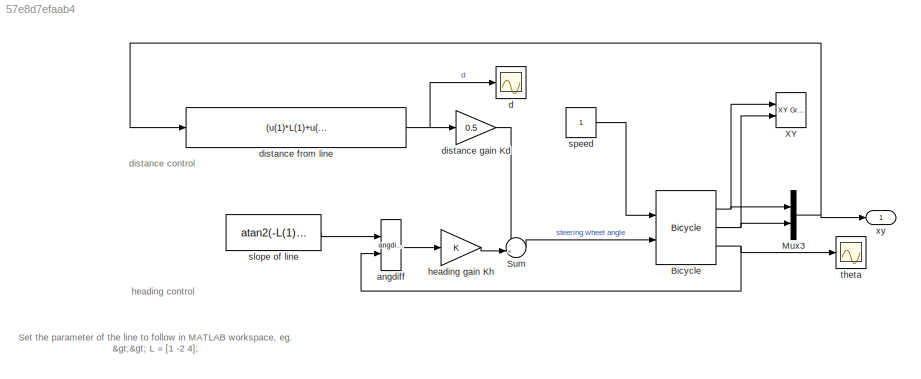
MODEL slx_57e8d7efaab4
KIND model
CONFIG AbsTol = auto
CONFIG FixedStep = auto
CONFIG MaxStep = auto
CONFIG MinStep = auto
CONFIG RelTol = 1e-3
CONFIG SampleTimeConstraint = Unconstrained
CONFIG Solver = ode45
CONFIG SolverMode = Auto
CONFIG SolverName = ode45
CONFIG StartTime = 0.0
CONFIG StopTime = 10.0
BLOCK [Reference] Bicycle  REF=roblocks/Vehicles/Bicycle  (lib defined in mdl_2a292b13c81b, mdl_69400f8cfe22, +12 more)
  L = 1
  Ports = [2, 3]
  SourceBlock = roblocks/Vehicles/Bicycle
  accel = 1
  alim = 1
  steer_rate = Inf
  vlim = 1
  x0 = x0
BLOCK [Mux] Mux3
  DisplayOption = bar
  Inputs = 2
  Ports = [2, 1]
BLOCK [Sum] Sum
  IconShape = round
  InputSameDT = off
  Inputs = -+|
  OutDataTypeStr = Inherit: Inherit via internal rule
  Ports = [2, 1]
  SaturateOnIntegerOverflow = off
BLOCK [Reference] XY  REF=simulink/Sinks/XY Graph
  Ports = [2]
  SourceBlock = simulink/Sinks/XY Graph
  SourceType = XY scope.
  st = -1
  xmax = 10
  xmin = 0
  ymax = 10
  ymin = 0
BLOCK [Reference] angdiff  REF=roblocks/Toolbox/angdiff  (lib defined in mdl_2a292b13c81b, mdl_69400f8cfe22, +12 more)
  Ports = [2, 1]
  SourceBlock = roblocks/Toolbox/angdiff
BLOCK [Scope] d
  DataFormat = StructureWithTime
  Decimation = 1
  Floating = off
  Grid = on
  LimitDataPoints = on
  MaxDataPoints = 5000
  NumInputPorts = 1
  Ports = [1]
  SampleInput = off
  SampleTime = -1
  SaveName = ScopeData1
  SaveToWorkspace = off
  ShowLegends = off
  TickLabels = OneTimeTick
  TimeRange = auto
  YMax = 1.05561
  YMin = -0.55625
  ZoomMode = on
BLOCK [Fcn] distance from line
  Expr = (u(1)*L(1)+u(2)*L(2)+L(3))/sqrt(L(1)^2+L(2)^2)
BLOCK [Gain] distance gain Kd
  Gain = 0.5
  OutDataTypeStr = Inherit: Inherit via internal rule
  ParamDataTypeStr = Inherit: Inherit via internal rule
  SaturateOnIntegerOverflow = off
BLOCK [Gain] heading gain Kh
  OutDataTypeStr = Inherit: Inherit via internal rule
  ParamDataTypeStr = Inherit: Inherit via internal rule
  SaturateOnIntegerOverflow = off
BLOCK [Constant] slope of line
  Value = atan2(-L(1),L(2))
BLOCK [Constant] speed
  SampleTime = 0.02
  VectorParams1D = off
BLOCK [Scope] theta
  DataFormat = StructureWithTime
  Decimation = 1
  Floating = off
  Grid = on
  LimitDataPoints = on
  MaxDataPoints = 5000
  NumInputPorts = 1
  Ports = [1]
  SampleInput = off
  SampleTime = -1
  SaveName = ScopeData
  SaveToWorkspace = off
  ShowLegends = off
  TickLabels = OneTimeTick
  TimeRange = auto
  YMax = 4.00297
  YMin = 1.30056
  ZoomMode = on
BLOCK [Outport] xy
  IconDisplay = Port number
ANNOTATION (root): Set the parameter of the line to follow in MATLAB workspace, eg. >> L = [1 -2 4];
ANNOTATION (root): distance control
ANNOTATION (root): heading control
NET Bicycle:1 -> Mux3:1, XY:1
NET Bicycle:2 -> Mux3:2, XY:2
NET Bicycle:3 -> angdiff:2, theta:1
NET Mux3:1 -> distance from line:1, xy:1
LINE Sum:1 -> Bicycle:2
LINE angdiff:1 -> heading gain Kh:1
NET distance from line:1 -> d:1, distance gain Kd:1
LINE distance gain Kd:1 -> Sum:1
LINE heading gain Kh:1 -> Sum:2
LINE slope of line:1 -> angdiff:1
LINE speed:1 -> Bicycle:1
note: NET lines group one-source signal fan-out (src -> all destinations, sorted); 1:1 wires keep LINE
